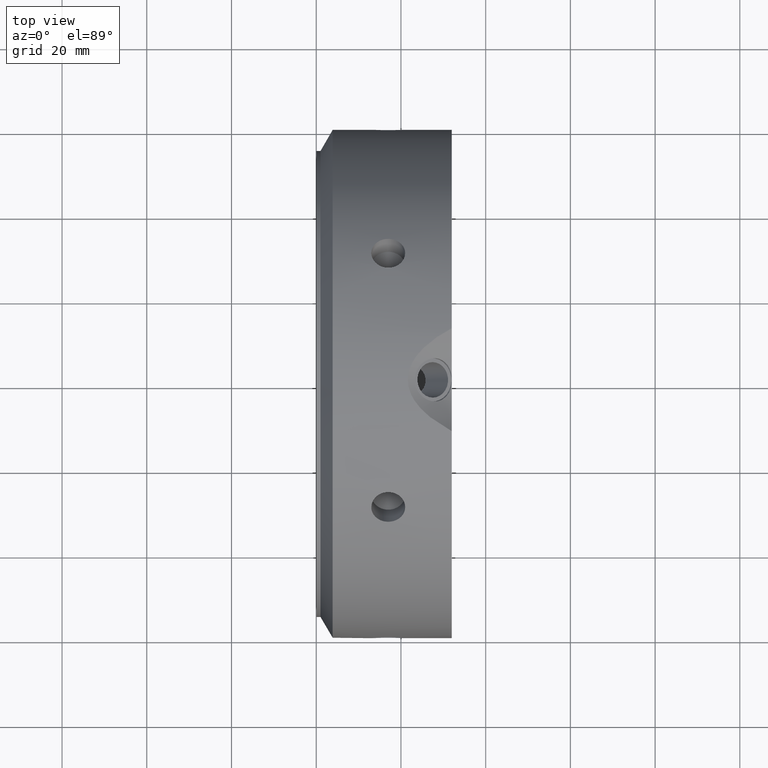
[diagram: clean part render]
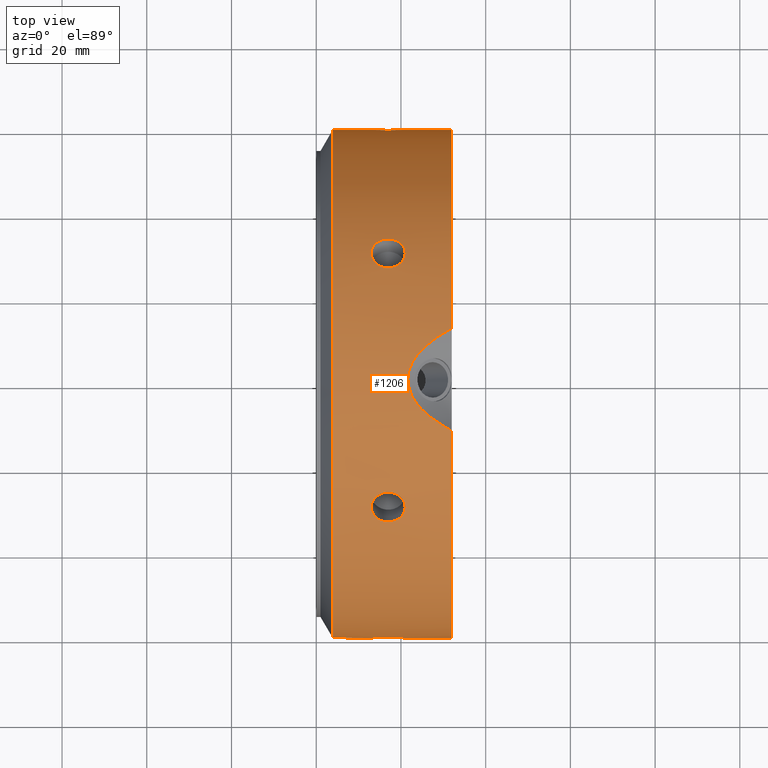
[diagram: same view with one face highlighted and labeled with its STEP entity id]
A machine part, top view. The second image highlights one B-rep face of the part: STEP entity #1206.
In plain terms, the highlighted cylindrical surface (bore or boss wall) has radius 60 mm, axis along (1, 0, 0).
Its self-contained STEP definition (entity closure, byte-faithful):
#90=CARTESIAN_POINT('',(12.999999999999975,30.000000000000053,51.961524227066292));
#91=VERTEX_POINT('',#90);
#92=CARTESIAN_POINT('',(20.999999999999979,30.000000000000057,51.961524227066292));
#93=VERTEX_POINT('',#92);
#94=CARTESIAN_POINT('',(12.999999999999979,30.00000000000005,51.961524227066285));
#95=CARTESIAN_POINT('',(12.999999999999979,30.435098626840112,51.710319917736136));
#96=CARTESIAN_POINT('',(13.100436972204104,30.895631779808198,51.436396497191943));
#97=CARTESIAN_POINT('',(13.508698078949234,31.736500286339727,50.921876411491915));
#98=CARTESIAN_POINT('',(13.816513973331876,32.11702597421197,50.681584329695767));
#99=CARTESIAN_POINT('',(14.52663201465819,32.715249966503407,50.297502595998608));
#100=CARTESIAN_POINT('',(14.976322861943498,32.972899428708466,50.128133130479583));
#101=CARTESIAN_POINT('',(15.961796046876103,33.313867372072679,49.902185009066784));
#102=CARTESIAN_POINT('',(16.497591045301778,33.397360709329334,49.84592558726284));
#103=CARTESIAN_POINT('',(17.502408954698176,33.397360709329334,49.84592558726284));
#104=CARTESIAN_POINT('',(18.038203953123855,33.313867372072679,49.902185009066784));
#105=CARTESIAN_POINT('',(19.023677138056456,32.972899428708466,50.128133130479583));
#106=CARTESIAN_POINT('',(19.473367985341767,32.715249966503407,50.297502595998608));
#107=CARTESIAN_POINT('',(20.183486026668078,32.117025974211977,50.681584329695767));
#108=CARTESIAN_POINT('',(20.49130192105072,31.736500286339727,50.921876411491908));
#109=CARTESIAN_POINT('',(20.899563027795853,30.895631779808195,51.436396497191936));
#110=CARTESIAN_POINT('',(20.999999999999979,30.435098626840112,51.710319917736143));
#111=CARTESIAN_POINT('',(20.999999999999979,30.00000000000005,51.961524227066292));
#112=B_SPLINE_CURVE_WITH_KNOTS('',3,(#94,#95,#96,#97,#98,#99,#100,#101,#102,#103,#104,#105,#106,#107,#108,#109,#110,#111),.UNSPECIFIED.,.F.,.U.,(4,2,2,2,2,2,2,2,4),(0.602890544015094,0.753613129613181,0.904335715211267,1.055058401620727,1.205781088030187,1.356503774439647,1.507226460849106,1.657949046447194,1.808671632045281),.UNSPECIFIED.);
#113=EDGE_CURVE('',#91,#93,#112,.T.);
#115=CARTESIAN_POINT('',(20.999999999999979,30.00000000000005,51.961524227066292));
#116=CARTESIAN_POINT('',(20.999999999999979,29.564901373159991,52.21272853639644));
#117=CARTESIAN_POINT('',(20.89956302779585,29.097410155793145,52.474600235879649));
#118=CARTESIAN_POINT('',(20.491301921050727,28.231388437553811,52.945553680928221));
#119=CARTESIAN_POINT('',(20.183486026668078,27.833026546453979,53.154952552520058));
#120=CARTESIAN_POINT('',(19.473367985341767,27.201290011796935,53.480988860149196));
#121=CARTESIAN_POINT('',(19.023677138056456,26.925787020929551,53.619435106930673));
#122=CARTESIAN_POINT('',(18.038203953123855,26.55962623616659,53.801747947053819));
#123=CARTESIAN_POINT('',(17.502408954698176,26.469157479053827,53.845925587262862));
#124=CARTESIAN_POINT('',(16.999999999999979,26.469157479053827,53.845925587262862));
#125=CARTESIAN_POINT('',(16.497591045301778,26.469157479053827,53.845925587262862));
#126=CARTESIAN_POINT('',(15.961796046876103,26.559626236166594,53.801747947053819));
#127=CARTESIAN_POINT('',(14.976322861943501,26.925787020929551,53.619435106930673));
#128=CARTESIAN_POINT('',(14.52663201465819,27.201290011796942,53.480988860149203));
#129=CARTESIAN_POINT('',(13.816513973331876,27.833026546453979,53.154952552520058));
#130=CARTESIAN_POINT('',(13.508698078949228,28.231388437553804,52.945553680928228));
#131=CARTESIAN_POINT('',(13.100436972204101,29.097410155793142,52.474600235879656));
#132=CARTESIAN_POINT('',(12.999999999999979,29.564901373159994,52.212728536396433));
#133=CARTESIAN_POINT('',(12.999999999999979,30.000000000000053,51.961524227066292));
#134=B_SPLINE_CURVE_WITH_KNOTS('',3,(#115,#116,#117,#118,#119,#120,#121,#122,#123,#124,#125,#126,#127,#128,#129,#130,#131,#132,#133),.UNSPECIFIED.,.F.,.U.,(4,2,2,2,3,2,2,2,4),(1.808671632045281,1.959394217643368,2.110116803241455,2.260839489650914,2.411562176060374,2.562284862469834,2.713007548879294,2.863730134477381,3.014452720075468),.UNSPECIFIED.);
#135=EDGE_CURVE('',#93,#91,#134,.T.);
#202=CARTESIAN_POINT('',(12.999999999999975,60.0,-3.996803E-014));
#203=VERTEX_POINT('',#202);
#204=CARTESIAN_POINT('',(20.999999999999979,60.0,-3.996803E-014));
#205=VERTEX_POINT('',#204);
#206=CARTESIAN_POINT('',(12.999999999999975,60.0,-3.275158E-014));
#207=CARTESIAN_POINT('',(12.999999999999975,60.0,-0.502408618660323));
#208=CARTESIAN_POINT('',(13.100436972204101,59.993041935601241,-1.03820373868773));
#209=CARTESIAN_POINT('',(13.508698078949228,59.967888723893424,-2.023677269436331));
#210=CARTESIAN_POINT('',(13.816513973331876,59.950052520665842,-2.473368222824312));
#211=CARTESIAN_POINT('',(14.52663201465819,59.916539978300243,-3.183486264150624));
#212=CARTESIAN_POINT('',(14.976322861943496,59.898686449637907,-3.491301976451118));
#213=CARTESIAN_POINT('',(15.961796046876103,59.873493608239166,-3.899562937987056));
#214=CARTESIAN_POINT('',(16.497591045301778,59.866518188383054,-4.000000000000034));
#215=CARTESIAN_POINT('',(17.502408954698176,59.866518188383054,-4.000000000000034));
#216=CARTESIAN_POINT('',(18.038203953123851,59.873493608239173,-3.899562937987055));
#217=CARTESIAN_POINT('',(19.023677138056456,59.898686449637914,-3.491301976451116));
#218=CARTESIAN_POINT('',(19.473367985341767,59.916539978300243,-3.183486264150624));
#219=CARTESIAN_POINT('',(20.183486026668078,59.950052520665842,-2.473368222824312));
#220=CARTESIAN_POINT('',(20.49130192105072,59.967888723893424,-2.023677269436331));
#221=CARTESIAN_POINT('',(20.89956302779585,59.993041935601241,-1.03820373868773));
#222=CARTESIAN_POINT('',(20.999999999999979,60.0,-0.502408618660324));
#223=CARTESIAN_POINT('',(20.999999999999979,60.0,-3.427814E-014));
#224=B_SPLINE_CURVE_WITH_KNOTS('',3,(#206,#207,#208,#209,#210,#211,#212,#213,#214,#215,#216,#217,#218,#219,#220,#221,#222,#223),.UNSPECIFIED.,.F.,.U.,(4,2,2,2,2,2,2,2,4),(0.602890544015093,0.75361312961318,0.904335715211267,1.055058401620727,1.205781088030187,1.356503774439646,1.507226460849106,1.657949046447193,1.80867163204528),.UNSPECIFIED.);
#225=EDGE_CURVE('',#203,#205,#224,.T.);
#227=CARTESIAN_POINT('',(20.999999999999975,60.0,-3.427814E-014));
#228=CARTESIAN_POINT('',(20.999999999999975,60.0,0.502408618660255));
#229=CARTESIAN_POINT('',(20.89956302779585,59.993041935601241,1.038203738687663));
#230=CARTESIAN_POINT('',(20.491301921050727,59.967888723893424,2.023677269436262));
#231=CARTESIAN_POINT('',(20.183486026668081,59.950052520665842,2.473368222824243));
#232=CARTESIAN_POINT('',(19.47336798534177,59.916539978300236,3.183486264150556));
#233=CARTESIAN_POINT('',(19.02367713805646,59.898686449637921,3.491301976451049));
#234=CARTESIAN_POINT('',(18.038203953123855,59.873493608239187,3.899562937986989));
#235=CARTESIAN_POINT('',(17.502408954698176,59.866518188383054,3.999999999999967));
#236=CARTESIAN_POINT('',(16.999999999999979,59.866518188383054,3.999999999999967));
#237=CARTESIAN_POINT('',(16.497591045301778,59.866518188383054,3.999999999999967));
#238=CARTESIAN_POINT('',(15.961796046876103,59.873493608239187,3.899562937986989));
#239=CARTESIAN_POINT('',(14.976322861943498,59.898686449637921,3.491301976451051));
#240=CARTESIAN_POINT('',(14.52663201465819,59.916539978300243,3.18348626415056));
#241=CARTESIAN_POINT('',(13.816513973331876,59.950052520665842,2.473368222824247));
#242=CARTESIAN_POINT('',(13.508698078949228,59.967888723893438,2.023677269436266));
#243=CARTESIAN_POINT('',(13.100436972204101,59.993041935601248,1.038203738687664));
#244=CARTESIAN_POINT('',(12.999999999999975,60.0,0.502408618660257));
#245=CARTESIAN_POINT('',(12.999999999999975,60.0,-3.275158E-014));
#246=B_SPLINE_CURVE_WITH_KNOTS('',3,(#227,#228,#229,#230,#231,#232,#233,#234,#235,#236,#237,#238,#239,#240,#241,#242,#243,#244,#245),.UNSPECIFIED.,.F.,.U.,(4,2,2,2,3,2,2,2,4),(1.80867163204528,1.959394217643367,2.110116803241454,2.260839489650913,2.411562176060373,2.562284862469833,2.713007548879293,2.86373013447738,3.014452720075467),.UNSPECIFIED.);
#247=EDGE_CURVE('',#205,#203,#246,.T.);
#314=CARTESIAN_POINT('',(12.999999999999975,29.999999999999979,-51.961524227066327));
#315=VERTEX_POINT('',#314);
#316=CARTESIAN_POINT('',(20.999999999999979,29.999999999999993,-51.96152422706632));
#317=VERTEX_POINT('',#316);
#318=CARTESIAN_POINT('',(12.999999999999975,29.999999999999986,-51.96152422706632));
#319=CARTESIAN_POINT('',(12.999999999999975,29.564901373159923,-52.212728536396469));
#320=CARTESIAN_POINT('',(13.100436972204104,29.097410155793074,-52.474600235879677));
#321=CARTESIAN_POINT('',(13.508698078949228,28.23138843755374,-52.945553680928242));
#322=CARTESIAN_POINT('',(13.816513973331876,27.833026546453912,-53.154952552520086));
#323=CARTESIAN_POINT('',(14.52663201465819,27.201290011796875,-53.480988860149225));
#324=CARTESIAN_POINT('',(14.976322861943498,26.92578702092948,-53.619435106930702));
#325=CARTESIAN_POINT('',(15.961796046876103,26.559626236166523,-53.80174794705384));
#326=CARTESIAN_POINT('',(16.497591045301778,26.469157479053766,-53.84592558726289));
#327=CARTESIAN_POINT('',(17.502408954698176,26.469157479053766,-53.84592558726289));
#328=CARTESIAN_POINT('',(18.038203953123862,26.559626236166526,-53.801747947053855));
#329=CARTESIAN_POINT('',(19.02367713805646,26.925787020929487,-53.619435106930709));
#330=CARTESIAN_POINT('',(19.473367985341767,27.201290011796875,-53.480988860149225));
#331=CARTESIAN_POINT('',(20.183486026668078,27.833026546453912,-53.154952552520086));
#332=CARTESIAN_POINT('',(20.491301921050727,28.23138843755374,-52.945553680928235));
#333=CARTESIAN_POINT('',(20.89956302779585,29.097410155793074,-52.474600235879663));
#334=CARTESIAN_POINT('',(20.999999999999979,29.564901373159927,-52.212728536396469));
#335=CARTESIAN_POINT('',(20.999999999999979,29.999999999999993,-51.96152422706632));
#336=B_SPLINE_CURVE_WITH_KNOTS('',3,(#318,#319,#320,#321,#322,#323,#324,#325,#326,#327,#328,#329,#330,#331,#332,#333,#334,#335),.UNSPECIFIED.,.F.,.U.,(4,2,2,2,2,2,2,2,4),(0.602890544015093,0.75361312961318,0.904335715211267,1.055058401620727,1.205781088030187,1.356503774439646,1.507226460849106,1.657949046447193,1.80867163204528),.UNSPECIFIED.);
#337=EDGE_CURVE('',#315,#317,#336,.T.);
#339=CARTESIAN_POINT('',(20.999999999999979,29.999999999999996,-51.96152422706632));
#340=CARTESIAN_POINT('',(20.999999999999979,30.435098626840052,-51.710319917736179));
#341=CARTESIAN_POINT('',(20.89956302779585,30.895631779808138,-51.436396497191978));
#342=CARTESIAN_POINT('',(20.49130192105072,31.736500286339666,-50.921876411491951));
#343=CARTESIAN_POINT('',(20.183486026668078,32.117025974211906,-50.681584329695809));
#344=CARTESIAN_POINT('',(19.473367985341767,32.715249966503336,-50.297502595998637));
#345=CARTESIAN_POINT('',(19.02367713805646,32.972899428708402,-50.128133130479625));
#346=CARTESIAN_POINT('',(18.038203953123855,33.313867372072615,-49.90218500906682));
#347=CARTESIAN_POINT('',(17.502408954698176,33.397360709329277,-49.845925587262876));
#348=CARTESIAN_POINT('',(16.999999999999979,33.397360709329277,-49.845925587262883));
#349=CARTESIAN_POINT('',(16.497591045301778,33.397360709329277,-49.845925587262883));
#350=CARTESIAN_POINT('',(15.961796046876099,33.313867372072615,-49.902185009066827));
#351=CARTESIAN_POINT('',(14.976322861943498,32.972899428708402,-50.128133130479632));
#352=CARTESIAN_POINT('',(14.52663201465819,32.715249966503343,-50.297502595998637));
#353=CARTESIAN_POINT('',(13.816513973331876,32.117025974211906,-50.681584329695809));
#354=CARTESIAN_POINT('',(13.50869807894923,31.736500286339663,-50.921876411491951));
#355=CARTESIAN_POINT('',(13.100436972204104,30.895631779808138,-51.436396497191978));
#356=CARTESIAN_POINT('',(12.999999999999975,30.435098626840052,-51.710319917736172));
#357=CARTESIAN_POINT('',(12.999999999999975,29.999999999999996,-51.96152422706632));
#358=B_SPLINE_CURVE_WITH_KNOTS('',3,(#339,#340,#341,#342,#343,#344,#345,#346,#347,#348,#349,#350,#351,#352,#353,#354,#355,#356,#357),.UNSPECIFIED.,.F.,.U.,(4,2,2,2,3,2,2,2,4),(1.80867163204528,1.959394217643367,2.110116803241454,2.260839489650913,2.411562176060373,2.562284862469833,2.713007548879293,2.86373013447738,3.014452720075466),.UNSPECIFIED.);
#359=EDGE_CURVE('',#317,#315,#358,.T.);
#426=CARTESIAN_POINT('',(12.999999999999975,-30.000000000000021,-51.961524227066313));
#427=VERTEX_POINT('',#426);
#428=CARTESIAN_POINT('',(20.999999999999979,-30.000000000000021,-51.961524227066313));
#429=VERTEX_POINT('',#428);
#430=CARTESIAN_POINT('',(12.999999999999979,-30.000000000000018,-51.961524227066306));
#431=CARTESIAN_POINT('',(12.999999999999979,-30.435098626840077,-51.710319917736157));
#432=CARTESIAN_POINT('',(13.100436972204104,-30.895631779808173,-51.436396497191971));
#433=CARTESIAN_POINT('',(13.50869807894923,-31.736500286339698,-50.921876411491944));
#434=CARTESIAN_POINT('',(13.81651397333188,-32.117025974211934,-50.681584329695788));
#435=CARTESIAN_POINT('',(14.52663201465819,-32.715249966503364,-50.297502595998616));
#436=CARTESIAN_POINT('',(14.976322861943496,-32.972899428708438,-50.128133130479604));
#437=CARTESIAN_POINT('',(15.961796046876099,-33.31386737207265,-49.902185009066798));
#438=CARTESIAN_POINT('',(16.497591045301778,-33.397360709329305,-49.845925587262876));
#439=CARTESIAN_POINT('',(17.502408954698176,-33.397360709329305,-49.845925587262876));
#440=CARTESIAN_POINT('',(18.038203953123855,-33.31386737207265,-49.902185009066798));
#441=CARTESIAN_POINT('',(19.02367713805646,-32.972899428708438,-50.128133130479604));
#442=CARTESIAN_POINT('',(19.473367985341767,-32.715249966503364,-50.297502595998616));
#443=CARTESIAN_POINT('',(20.183486026668078,-32.117025974211934,-50.681584329695795));
#444=CARTESIAN_POINT('',(20.491301921050727,-31.736500286339691,-50.921876411491944));
#445=CARTESIAN_POINT('',(20.89956302779585,-30.89563177980817,-51.436396497191971));
#446=CARTESIAN_POINT('',(20.999999999999975,-30.43509862684008,-51.710319917736157));
#447=CARTESIAN_POINT('',(20.999999999999975,-30.000000000000021,-51.961524227066306));
#448=B_SPLINE_CURVE_WITH_KNOTS('',3,(#430,#431,#432,#433,#434,#435,#436,#437,#438,#439,#440,#441,#442,#443,#444,#445,#446,#447),.UNSPECIFIED.,.F.,.U.,(4,2,2,2,2,2,2,2,4),(0.602890544015093,0.75361312961318,0.904335715211267,1.055058401620727,1.205781088030187,1.356503774439646,1.507226460849106,1.657949046447193,1.80867163204528),.UNSPECIFIED.);
#449=EDGE_CURVE('',#427,#429,#448,.T.);
#451=CARTESIAN_POINT('',(20.999999999999979,-30.000000000000018,-51.961524227066306));
#452=CARTESIAN_POINT('',(20.999999999999979,-29.564901373159955,-52.212728536396455));
#453=CARTESIAN_POINT('',(20.89956302779585,-29.09741015579311,-52.474600235879649));
#454=CARTESIAN_POINT('',(20.491301921050727,-28.231388437553775,-52.945553680928221));
#455=CARTESIAN_POINT('',(20.183486026668078,-27.833026546453947,-53.154952552520065));
#456=CARTESIAN_POINT('',(19.473367985341767,-27.20129001179691,-53.480988860149203));
#457=CARTESIAN_POINT('',(19.02367713805646,-26.925787020929516,-53.619435106930673));
#458=CARTESIAN_POINT('',(18.038203953123855,-26.559626236166558,-53.801747947053819));
#459=CARTESIAN_POINT('',(17.502408954698176,-26.469157479053798,-53.845925587262883));
#460=CARTESIAN_POINT('',(16.999999999999979,-26.469157479053798,-53.845925587262883));
#461=CARTESIAN_POINT('',(16.497591045301778,-26.469157479053798,-53.845925587262883));
#462=CARTESIAN_POINT('',(15.961796046876099,-26.559626236166558,-53.801747947053819));
#463=CARTESIAN_POINT('',(14.976322861943498,-26.925787020929512,-53.619435106930673));
#464=CARTESIAN_POINT('',(14.52663201465819,-27.20129001179691,-53.480988860149203));
#465=CARTESIAN_POINT('',(13.816513973331876,-27.833026546453947,-53.154952552520065));
#466=CARTESIAN_POINT('',(13.508698078949228,-28.231388437553775,-52.945553680928228));
#467=CARTESIAN_POINT('',(13.100436972204104,-29.09741015579311,-52.474600235879656));
#468=CARTESIAN_POINT('',(12.999999999999975,-29.564901373159955,-52.212728536396455));
#469=CARTESIAN_POINT('',(12.999999999999975,-30.000000000000018,-51.961524227066306));
#470=B_SPLINE_CURVE_WITH_KNOTS('',3,(#451,#452,#453,#454,#455,#456,#457,#458,#459,#460,#461,#462,#463,#464,#465,#466,#467,#468,#469),.UNSPECIFIED.,.F.,.U.,(4,2,2,2,3,2,2,2,4),(1.80867163204528,1.959394217643366,2.110116803241453,2.260839489650913,2.411562176060373,2.562284862469833,2.713007548879292,2.863730134477379,3.014452720075466),.UNSPECIFIED.);
#471=EDGE_CURVE('',#429,#427,#470,.T.);
#538=CARTESIAN_POINT('',(12.999999999999975,-60.0,1.665335E-014));
#539=VERTEX_POINT('',#538);
#540=CARTESIAN_POINT('',(20.999999999999979,-60.0,1.332268E-014));
#541=VERTEX_POINT('',#540);
#542=CARTESIAN_POINT('',(12.999999999999975,-60.0,1.387779E-014));
#543=CARTESIAN_POINT('',(12.999999999999975,-60.0,0.502408618660304));
#544=CARTESIAN_POINT('',(13.100436972204101,-59.993041935601241,1.038203738687711));
#545=CARTESIAN_POINT('',(13.508698078949228,-59.967888723893424,2.023677269436313));
#546=CARTESIAN_POINT('',(13.816513973331876,-59.950052520665842,2.473368222824293));
#547=CARTESIAN_POINT('',(14.52663201465819,-59.916539978300243,3.183486264150606));
#548=CARTESIAN_POINT('',(14.976322861943498,-59.898686449637921,3.491301976451098));
#549=CARTESIAN_POINT('',(15.961796046876103,-59.873493608239187,3.899562937987036));
#550=CARTESIAN_POINT('',(16.497591045301778,-59.866518188383068,4.000000000000014));
#551=CARTESIAN_POINT('',(17.502408954698176,-59.866518188383068,4.000000000000014));
#552=CARTESIAN_POINT('',(18.038203953123851,-59.873493608239187,3.899562937987036));
#553=CARTESIAN_POINT('',(19.023677138056456,-59.898686449637921,3.491301976451098));
#554=CARTESIAN_POINT('',(19.473367985341767,-59.916539978300243,3.183486264150606));
#555=CARTESIAN_POINT('',(20.183486026668078,-59.950052520665842,2.473368222824293));
#556=CARTESIAN_POINT('',(20.49130192105072,-59.967888723893424,2.023677269436313));
#557=CARTESIAN_POINT('',(20.89956302779585,-59.993041935601241,1.038203738687711));
#558=CARTESIAN_POINT('',(20.999999999999975,-60.0,0.502408618660305));
#559=CARTESIAN_POINT('',(20.999999999999975,-60.0,1.554312E-014));
#560=B_SPLINE_CURVE_WITH_KNOTS('',3,(#542,#543,#544,#545,#546,#547,#548,#549,#550,#551,#552,#553,#554,#555,#556,#557,#558,#559),.UNSPECIFIED.,.F.,.U.,(4,2,2,2,2,2,2,2,4),(0.602890544015093,0.75361312961318,0.904335715211267,1.055058401620727,1.205781088030187,1.356503774439646,1.507226460849106,1.657949046447193,1.80867163204528),.UNSPECIFIED.);
#561=EDGE_CURVE('',#539,#541,#560,.T.);
#563=CARTESIAN_POINT('',(20.999999999999975,-60.0,1.512679E-014));
#564=CARTESIAN_POINT('',(20.999999999999975,-60.0,-0.502408618660275));
#565=CARTESIAN_POINT('',(20.89956302779585,-59.993041935601241,-1.038203738687682));
#566=CARTESIAN_POINT('',(20.491301921050727,-59.967888723893424,-2.023677269436281));
#567=CARTESIAN_POINT('',(20.183486026668081,-59.950052520665842,-2.473368222824262));
#568=CARTESIAN_POINT('',(19.47336798534177,-59.916539978300236,-3.183486264150575));
#569=CARTESIAN_POINT('',(19.02367713805646,-59.898686449637921,-3.491301976451068));
#570=CARTESIAN_POINT('',(18.038203953123855,-59.873493608239187,-3.899562937987008));
#571=CARTESIAN_POINT('',(17.502408954698176,-59.866518188383054,-3.999999999999986));
#572=CARTESIAN_POINT('',(16.999999999999979,-59.866518188383054,-3.999999999999986));
#573=CARTESIAN_POINT('',(16.497591045301778,-59.866518188383054,-3.999999999999986));
#574=CARTESIAN_POINT('',(15.961796046876103,-59.873493608239187,-3.899562937987009));
#575=CARTESIAN_POINT('',(14.976322861943498,-59.898686449637921,-3.49130197645107));
#576=CARTESIAN_POINT('',(14.52663201465819,-59.916539978300243,-3.183486264150579));
#577=CARTESIAN_POINT('',(13.816513973331876,-59.950052520665842,-2.473368222824266));
#578=CARTESIAN_POINT('',(13.508698078949228,-59.967888723893424,-2.023677269436286));
#579=CARTESIAN_POINT('',(13.100436972204101,-59.993041935601241,-1.038203738687684));
#580=CARTESIAN_POINT('',(12.999999999999975,-60.0,-0.502408618660277));
#581=CARTESIAN_POINT('',(12.999999999999975,-60.0,1.346145E-014));
#582=B_SPLINE_CURVE_WITH_KNOTS('',3,(#563,#564,#565,#566,#567,#568,#569,#570,#571,#572,#573,#574,#575,#576,#577,#578,#579,#580,#581),.UNSPECIFIED.,.F.,.U.,(4,2,2,2,3,2,2,2,4),(1.80867163204528,1.959394217643367,2.110116803241454,2.260839489650913,2.411562176060373,2.562284862469833,2.713007548879293,2.86373013447738,3.014452720075467),.UNSPECIFIED.);
#583=EDGE_CURVE('',#541,#539,#582,.T.);
#687=CARTESIAN_POINT('',(12.999999999999975,-29.999999999999993,51.96152422706632));
#688=VERTEX_POINT('',#687);
#689=CARTESIAN_POINT('',(20.999999999999979,-29.999999999999993,51.96152422706632));
#690=VERTEX_POINT('',#689);
#691=CARTESIAN_POINT('',(12.999999999999975,-29.999999999999996,51.96152422706632));
#692=CARTESIAN_POINT('',(12.999999999999975,-29.564901373159937,52.212728536396469));
#693=CARTESIAN_POINT('',(13.100436972204104,-29.097410155793085,52.474600235879663));
#694=CARTESIAN_POINT('',(13.508698078949228,-28.231388437553747,52.945553680928235));
#695=CARTESIAN_POINT('',(13.816513973331876,-27.833026546453926,53.154952552520086));
#696=CARTESIAN_POINT('',(14.52663201465819,-27.201290011796885,53.480988860149225));
#697=CARTESIAN_POINT('',(14.976322861943496,-26.925787020929498,53.619435106930702));
#698=CARTESIAN_POINT('',(15.961796046876099,-26.559626236166537,53.80174794705384));
#699=CARTESIAN_POINT('',(16.497591045301778,-26.46915747905377,53.84592558726289));
#700=CARTESIAN_POINT('',(17.502408954698176,-26.46915747905377,53.84592558726289));
#701=CARTESIAN_POINT('',(18.038203953123851,-26.55962623616653,53.80174794705384));
#702=CARTESIAN_POINT('',(19.02367713805646,-26.925787020929491,53.619435106930702));
#703=CARTESIAN_POINT('',(19.473367985341767,-27.201290011796885,53.480988860149225));
#704=CARTESIAN_POINT('',(20.183486026668078,-27.833026546453922,53.154952552520086));
#705=CARTESIAN_POINT('',(20.491301921050727,-28.23138843755375,52.945553680928235));
#706=CARTESIAN_POINT('',(20.89956302779585,-29.097410155793085,52.474600235879663));
#707=CARTESIAN_POINT('',(20.999999999999979,-29.564901373159937,52.212728536396462));
#708=CARTESIAN_POINT('',(20.999999999999979,-29.999999999999996,51.96152422706632));
#709=B_SPLINE_CURVE_WITH_KNOTS('',3,(#691,#692,#693,#694,#695,#696,#697,#698,#699,#700,#701,#702,#703,#704,#705,#706,#707,#708),.UNSPECIFIED.,.F.,.U.,(4,2,2,2,2,2,2,2,4),(0.602890544015093,0.75361312961318,0.904335715211267,1.055058401620727,1.205781088030187,1.356503774439646,1.507226460849106,1.657949046447193,1.80867163204528),.UNSPECIFIED.);
#710=EDGE_CURVE('',#688,#690,#709,.T.);
#712=CARTESIAN_POINT('',(20.999999999999979,-29.999999999999993,51.96152422706632));
#713=CARTESIAN_POINT('',(20.999999999999979,-30.435098626840052,51.710319917736172));
#714=CARTESIAN_POINT('',(20.899563027795853,-30.895631779808138,51.436396497191986));
#715=CARTESIAN_POINT('',(20.491301921050731,-31.736500286339666,50.921876411491958));
#716=CARTESIAN_POINT('',(20.183486026668078,-32.117025974211913,50.681584329695809));
#717=CARTESIAN_POINT('',(19.473367985341767,-32.715249966503343,50.297502595998637));
#718=CARTESIAN_POINT('',(19.02367713805646,-32.972899428708409,50.128133130479625));
#719=CARTESIAN_POINT('',(18.038203953123858,-33.313867372072622,49.90218500906682));
#720=CARTESIAN_POINT('',(17.502408954698176,-33.397360709329277,49.845925587262876));
#721=CARTESIAN_POINT('',(16.999999999999979,-33.397360709329277,49.845925587262876));
#722=CARTESIAN_POINT('',(16.497591045301778,-33.397360709329277,49.845925587262876));
#723=CARTESIAN_POINT('',(15.961796046876096,-33.313867372072622,49.90218500906682));
#724=CARTESIAN_POINT('',(14.976322861943494,-32.972899428708409,50.128133130479625));
#725=CARTESIAN_POINT('',(14.52663201465819,-32.715249966503343,50.297502595998637));
#726=CARTESIAN_POINT('',(13.81651397333188,-32.117025974211913,50.681584329695809));
#727=CARTESIAN_POINT('',(13.50869807894923,-31.736500286339666,50.921876411491951));
#728=CARTESIAN_POINT('',(13.100436972204106,-30.895631779808138,51.436396497191978));
#729=CARTESIAN_POINT('',(12.999999999999975,-30.435098626840052,51.710319917736172));
#730=CARTESIAN_POINT('',(12.999999999999975,-29.999999999999996,51.96152422706632));
#731=B_SPLINE_CURVE_WITH_KNOTS('',3,(#712,#713,#714,#715,#716,#717,#718,#719,#720,#721,#722,#723,#724,#725,#726,#727,#728,#729,#730),.UNSPECIFIED.,.F.,.U.,(4,2,2,2,3,2,2,2,4),(1.80867163204528,1.959394217643367,2.110116803241454,2.260839489650913,2.411562176060373,2.562284862469833,2.713007548879293,2.86373013447738,3.014452720075467),.UNSPECIFIED.);
#732=EDGE_CURVE('',#690,#688,#731,.T.);
#747=CARTESIAN_POINT('',(31.999999999999993,56.962044959056151,-18.850077826960437));
#748=VERTEX_POINT('',#747);
#796=CARTESIAN_POINT('',(31.999999999999986,44.805668740989518,-39.905539072573795));
#797=VERTEX_POINT('',#796);
#805=CARTESIAN_POINT('',(31.999999999999993,56.962044959056151,-18.85007782696043));
#806=CARTESIAN_POINT('',(30.650773587829093,56.732925805223083,-19.542440779592578));
#807=CARTESIAN_POINT('',(29.362231763228735,56.473167870476892,-20.286092066963796));
#808=CARTESIAN_POINT('',(26.527293942483272,55.758735895871361,-22.188534528118282));
#809=CARTESIAN_POINT('',(24.868082345522986,55.217713504239356,-23.532791009155719));
#810=CARTESIAN_POINT('',(23.020359325225861,54.172011677881343,-25.808723375273559));
#811=CARTESIAN_POINT('',(22.510282512127063,53.784145216735304,-26.610860354863242));
#812=CARTESIAN_POINT('',(21.803765959924078,52.929897445816039,-28.27186095717785));
#813=CARTESIAN_POINT('',(21.607695154586757,52.463357222862719,-29.130799754366137));
#814=CARTESIAN_POINT('',(21.607695154586757,51.459691231269886,-30.869200245633905));
#815=CARTESIAN_POINT('',(21.803765959924057,50.949098524085443,-31.702705329192888));
#816=CARTESIAN_POINT('',(22.510282512127048,49.937753692239369,-33.27300590109251));
#817=CARTESIAN_POINT('',(23.020359325225847,49.437015921172801,-34.009976599515781));
#818=CARTESIAN_POINT('',(24.868082345522957,47.988851587998546,-36.053547128984519));
#819=CARTESIAN_POINT('',(26.527293942483258,47.095202522034242,-37.194214504672757));
#820=CARTESIAN_POINT('',(29.362231763228728,45.804855008739018,-38.764151974534265));
#821=CARTESIAN_POINT('',(30.650773587829082,45.290713069691648,-39.360934588544666));
#822=CARTESIAN_POINT('',(31.999999999999996,44.805668740989539,-39.905539072573781));
#823=B_SPLINE_CURVE_WITH_KNOTS('',3,(#805,#806,#807,#808,#809,#810,#811,#812,#813,#814,#815,#816,#817,#818,#819,#820,#821,#822),.UNSPECIFIED.,.F.,.U.,(4,2,2,2,2,2,2,2,4),(2.370458234850144,2.814677080607904,3.4168766755636,3.717976473041449,4.019076270519297,4.320176067997144,4.621275865474992,5.223475460430686,5.667694306188452),.UNSPECIFIED.);
#824=EDGE_CURVE('',#748,#797,#823,.T.);
#933=CARTESIAN_POINT('',(31.999999999999986,-44.805668740989539,-39.905539072573781));
#934=VERTEX_POINT('',#933);
#982=CARTESIAN_POINT('',(31.999999999999989,-56.962044959056193,-18.850077826960341));
#983=VERTEX_POINT('',#982);
#991=CARTESIAN_POINT('',(32.0,-44.80566874098956,-39.905539072573752));
#992=CARTESIAN_POINT('',(30.587139358940377,-45.313589453933325,-39.33524913940289));
#993=CARTESIAN_POINT('',(29.240774700601364,-45.853359478703254,-38.707861707827817));
#994=CARTESIAN_POINT('',(26.395826713072303,-47.164785298327345,-37.105639221023047));
#995=CARTESIAN_POINT('',(24.77713980219923,-48.047835280149997,-35.97401244387973));
#996=CARTESIAN_POINT('',(22.978310262689455,-49.476575168006754,-33.952165478899403));
#997=CARTESIAN_POINT('',(22.482508175354731,-49.970303868734867,-33.223738300540354));
#998=CARTESIAN_POINT('',(21.796984277488306,-50.966383317267166,-31.674529626386416));
#999=CARTESIAN_POINT('',(21.607695154586771,-51.468726020901258,-30.853551530956686));
#1000=CARTESIAN_POINT('',(21.607695154586771,-52.454322433231383,-29.146448469043289));
#1001=CARTESIAN_POINT('',(21.796984277488317,-52.914138968007052,-28.300917878575554));
#1002=CARTESIAN_POINT('',(22.482508175354742,-53.75775331132143,-26.66368343488201));
#1003=CARTESIAN_POINT('',(22.978310262689465,-54.141725402223315,-25.871888248294439));
#1004=CARTESIAN_POINT('',(24.777139802199247,-55.178326292532361,-23.623639727520185));
#1005=CARTESIAN_POINT('',(26.395826713072303,-55.716818838229884,-22.293082621878739));
#1006=CARTESIAN_POINT('',(29.240774700601364,-56.448671304505424,-20.35624330350306));
#1007=CARTESIAN_POINT('',(30.587139358940377,-56.72211974587956,-19.575095034063416));
#1008=CARTESIAN_POINT('',(32.000000000000014,-56.962044959056179,-18.85007782696038));
#1009=B_SPLINE_CURVE_WITH_KNOTS('',3,(#991,#992,#993,#994,#995,#996,#997,#998,#999,#1000,#1001,#1002,#1003,#1004,#1005,#1006,#1007,#1008),.UNSPECIFIED.,.F.,.U.,(4,2,2,2,2,2,2,2,4),(2.299649663774572,2.763877685285826,3.355235532683903,3.650914456382941,3.94659338008198,4.242272303781019,4.537951227480058,5.129309074878134,5.593537096389389),.UNSPECIFIED.);
#1010=EDGE_CURVE('',#934,#983,#1009,.T.);
#1112=CARTESIAN_POINT('',(17.943375672974046,0.0,0.0));
#1113=DIRECTION('',(1.0,0.0,0.0));
#1114=DIRECTION('',(0.0,1.0,0.0));
#1115=AXIS2_PLACEMENT_3D('',#1112,#1113,#1114);
#1116=CYLINDRICAL_SURFACE('',#1115,60.0);
#1117=CARTESIAN_POINT('',(3.886751345948105,60.0,0.0));
#1118=VERTEX_POINT('',#1117);
#1119=CARTESIAN_POINT('',(3.886751345948105,0.0,0.0));
#1120=DIRECTION('',(1.0,0.0,0.0));
#1121=DIRECTION('',(0.0,1.0,0.0));
#1122=AXIS2_PLACEMENT_3D('',#1119,#1120,#1121);
#1123=CIRCLE('',#1122,60.0);
#1124=EDGE_CURVE('',#1118,#1118,#1123,.T.);
#1125=ORIENTED_EDGE('',*,*,#1124,.T.);
#1126=EDGE_LOOP('',(#1125));
#1127=FACE_OUTER_BOUND('',#1126,.T.);
#1128=ORIENTED_EDGE('',*,*,#113,.T.);
#1129=ORIENTED_EDGE('',*,*,#135,.T.);
#1130=EDGE_LOOP('',(#1128,#1129));
#1131=FACE_BOUND('',#1130,.T.);
#1132=ORIENTED_EDGE('',*,*,#225,.T.);
#1133=ORIENTED_EDGE('',*,*,#247,.T.);
#1134=EDGE_LOOP('',(#1132,#1133));
#1135=FACE_BOUND('',#1134,.T.);
#1136=ORIENTED_EDGE('',*,*,#337,.T.);
#1137=ORIENTED_EDGE('',*,*,#359,.T.);
#1138=EDGE_LOOP('',(#1136,#1137));
#1139=FACE_BOUND('',#1138,.T.);
#1140=ORIENTED_EDGE('',*,*,#449,.T.);
#1141=ORIENTED_EDGE('',*,*,#471,.T.);
#1142=EDGE_LOOP('',(#1140,#1141));
#1143=FACE_BOUND('',#1142,.T.);
#1144=ORIENTED_EDGE('',*,*,#561,.T.);
#1145=ORIENTED_EDGE('',*,*,#583,.T.);
#1146=EDGE_LOOP('',(#1144,#1145));
#1147=FACE_BOUND('',#1146,.T.);
#1148=ORIENTED_EDGE('',*,*,#710,.T.);
#1149=ORIENTED_EDGE('',*,*,#732,.T.);
#1150=EDGE_LOOP('',(#1148,#1149));
#1151=FACE_BOUND('',#1150,.T.);
#1152=ORIENTED_EDGE('',*,*,#824,.T.);
#1153=CARTESIAN_POINT('',(31.999999999999989,0.0,0.0));
#1154=DIRECTION('',(1.0,0.0,0.0));
#1155=DIRECTION('',(0.0,1.0,0.0));
#1156=AXIS2_PLACEMENT_3D('',#1153,#1154,#1155);
#1157=CIRCLE('',#1156,60.0);
#1158=EDGE_CURVE('',#934,#797,#1157,.T.);
#1159=ORIENTED_EDGE('',*,*,#1158,.F.);
#1160=ORIENTED_EDGE('',*,*,#1010,.T.);
#1161=CARTESIAN_POINT('',(31.999999999999986,-12.156376218066608,58.755616899534154));
#1162=VERTEX_POINT('',#1161);
#1163=CARTESIAN_POINT('',(31.999999999999989,0.0,0.0));
#1164=DIRECTION('',(1.0,0.0,0.0));
#1165=DIRECTION('',(0.0,1.0,0.0));
#1166=AXIS2_PLACEMENT_3D('',#1163,#1164,#1165);
#1167=CIRCLE('',#1166,60.0);
#1168=EDGE_CURVE('',#1162,#983,#1167,.T.);
#1169=ORIENTED_EDGE('',*,*,#1168,.F.);
#1170=CARTESIAN_POINT('',(31.999999999999986,12.156376218066608,58.755616899534154));
#1171=VERTEX_POINT('',#1170);
#1172=CARTESIAN_POINT('',(31.999999999999986,-12.156376218066605,58.755616899534154));
#1173=CARTESIAN_POINT('',(31.421861465151629,-11.850359803245052,58.818930857650457));
#1174=CARTESIAN_POINT('',(30.854226309553106,-11.532789906557248,58.88214857473141));
#1175=CARTESIAN_POINT('',(28.744232603166022,-10.278021568370747,59.120629543815184));
#1176=CARTESIAN_POINT('',(27.290671802070246,-9.259621066049013,59.292386706166923));
#1177=CARTESIAN_POINT('',(24.862871926317123,-7.101151379393345,59.587136365557498));
#1178=CARTESIAN_POINT('',(23.726975002902865,-5.861464477754875,59.729251689300938));
#1179=CARTESIAN_POINT('',(22.501129954486476,-3.777854159797273,59.884997377577207));
#1180=CARTESIAN_POINT('',(22.170869543862601,-3.045344493629294,59.92739548104565));
#1181=CARTESIAN_POINT('',(21.723880568076346,-1.540652662001971,59.984941791182251));
#1182=CARTESIAN_POINT('',(21.607695154586754,-0.768305758962507,60.0));
#1183=CARTESIAN_POINT('',(21.607695154586754,0.768305758962507,60.0));
#1184=CARTESIAN_POINT('',(21.723880568076346,1.540652662001969,59.984941791182251));
#1185=CARTESIAN_POINT('',(22.170869543862601,3.045344493629293,59.92739548104565));
#1186=CARTESIAN_POINT('',(22.501129954486466,3.777854159797273,59.884997377577207));
#1187=CARTESIAN_POINT('',(23.726975002902858,5.861464477754874,59.729251689300938));
#1188=CARTESIAN_POINT('',(24.862871926317119,7.101151379393345,59.587136365557498));
#1189=CARTESIAN_POINT('',(27.290671802070243,9.259621066049013,59.292386706166923));
#1190=CARTESIAN_POINT('',(28.744232603166012,10.278021568370752,59.120629543815177));
#1191=CARTESIAN_POINT('',(30.854226309553091,11.532789906557252,58.882148574731389));
#1192=CARTESIAN_POINT('',(31.421861465151629,11.850359803245052,58.818930857650464));
#1193=CARTESIAN_POINT('',(31.999999999999989,12.156376218066606,58.755616899534154));
#1194=B_SPLINE_CURVE_WITH_KNOTS('',3,(#1172,#1173,#1174,#1175,#1176,#1177,#1178,#1179,#1180,#1181,#1182,#1183,#1184,#1185,#1186,#1187,#1188,#1189,#1190,#1191,#1192,#1193),.UNSPECIFIED.,.F.,.U.,(4,2,2,2,2,2,2,2,2,2,4),(1.368260175891203,1.552771963920117,2.070362618560156,2.53134607393766,2.761837801626412,2.992329529315164,3.222821257003916,3.453312984692668,3.914296440070173,4.431887094710211,4.616398882739126),.UNSPECIFIED.);
#1195=EDGE_CURVE('',#1162,#1171,#1194,.T.);
#1196=ORIENTED_EDGE('',*,*,#1195,.T.);
#1197=CARTESIAN_POINT('',(31.999999999999989,0.0,0.0));
#1198=DIRECTION('',(1.0,0.0,0.0));
#1199=DIRECTION('',(0.0,1.0,0.0));
#1200=AXIS2_PLACEMENT_3D('',#1197,#1198,#1199);
#1201=CIRCLE('',#1200,60.0);
#1202=EDGE_CURVE('',#748,#1171,#1201,.T.);
#1203=ORIENTED_EDGE('',*,*,#1202,.F.);
#1204=EDGE_LOOP('',(#1152,#1159,#1160,#1169,#1196,#1203));
#1205=FACE_BOUND('',#1204,.T.);
#1206=ADVANCED_FACE('',(#1127,#1131,#1135,#1139,#1143,#1147,#1151,#1205),#1116,.T.);